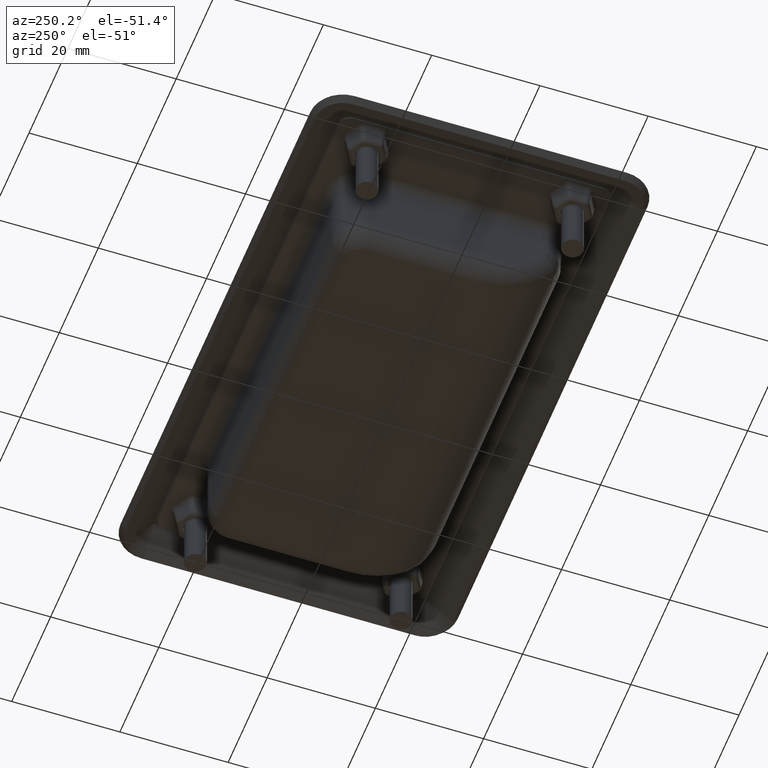
[diagram: clean part render]
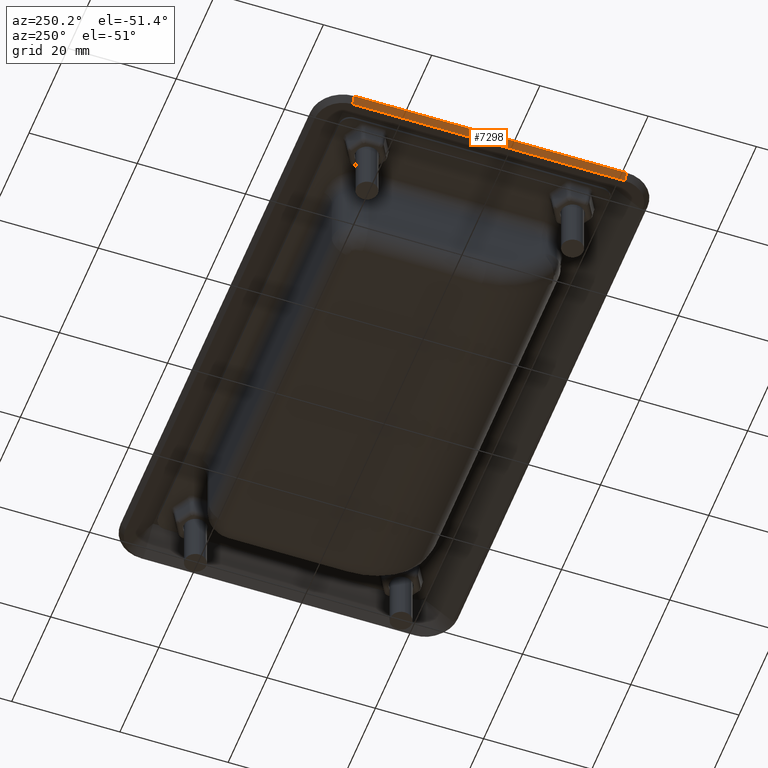
[diagram: same view with one face highlighted and labeled with its STEP entity id]
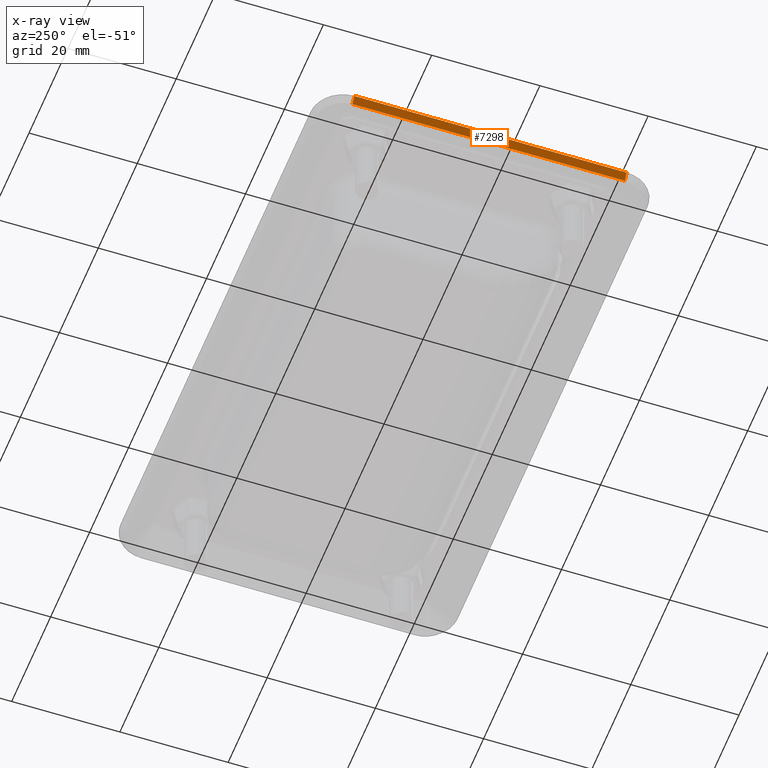
[diagram: x-ray of the same camera — body ghosted, the highlighted face saturated]
A machine part, auxiliary view. The second image highlights one B-rep face of the part: STEP entity #7298.
The next image is the same camera in x-ray: the body ghosted, the highlighted face saturated — about 0% of this face is hidden behind the body in this view.
In plain terms, the highlighted planar face has unit normal (-0.8021, -0, -0.5972).
Its self-contained STEP definition (entity closure, byte-faithful):
#269=LINE('',#10832,#803);
#273=LINE('',#10845,#807);
#274=LINE('',#10848,#808);
#275=LINE('',#10849,#809);
#803=VECTOR('',#8658,1.50000000000001);
#807=VECTOR('',#8674,50.3);
#808=VECTOR('',#8677,1.50000000000001);
#809=VECTOR('',#8678,50.3);
#1610=PLANE('',#7829);
#1802=FACE_OUTER_BOUND('',#2291,.T.);
#2291=EDGE_LOOP('',(#5002,#5003,#5004,#5005));
#3074=VERTEX_POINT('',#10827);
#3075=VERTEX_POINT('',#10831);
#3078=VERTEX_POINT('',#10843);
#3079=VERTEX_POINT('',#10847);
#3780=EDGE_CURVE('',#3075,#3074,#269,.T.);
#3787=EDGE_CURVE('',#3078,#3074,#273,.T.);
#3788=EDGE_CURVE('',#3079,#3078,#274,.T.);
#3789=EDGE_CURVE('',#3079,#3075,#275,.T.);
#5002=ORIENTED_EDGE('',*,*,#3788,.T.);
#5003=ORIENTED_EDGE('',*,*,#3787,.T.);
#5004=ORIENTED_EDGE('',*,*,#3780,.F.);
#5005=ORIENTED_EDGE('',*,*,#3789,.F.);
#7298=ADVANCED_FACE('',(#1802),#1610,.T.);
#7829=AXIS2_PLACEMENT_3D('',#10846,#8675,#8676);
#8658=DIRECTION('',(0.597160603450039,-1.25283182053937E-15,0.802121695060784));
#8674=DIRECTION('',(2.09333496309238E-17,-1.,0.));
#8675=DIRECTION('center_axis',(0.802121695060784,0.,-0.597160603450039));
#8676=DIRECTION('ref_axis',(0.597160603450041,0.,0.802121695060782));
#8677=DIRECTION('',(0.597160603450039,-1.25283182053937E-15,0.802121695060784));
#8678=DIRECTION('',(2.09333496309238E-17,-1.,0.));
#10827=CARTESIAN_POINT('',(54.65,-25.15,-4.09681745740883));
#10831=CARTESIAN_POINT('',(53.7542590948249,-25.15,-5.3));
#10832=CARTESIAN_POINT('',(53.7542590948249,-25.15,-5.3));
#10843=CARTESIAN_POINT('',(54.65,25.15,-4.09681745740883));
#10845=CARTESIAN_POINT('',(54.65,25.15,-4.09681745740883));
#10846=CARTESIAN_POINT('Origin',(53.7542590948249,25.15,-5.3));
#10847=CARTESIAN_POINT('',(53.7542590948249,25.15,-5.3));
#10848=CARTESIAN_POINT('',(53.7542590948249,25.15,-5.3));
#10849=CARTESIAN_POINT('',(53.7542590948249,25.15,-5.3));